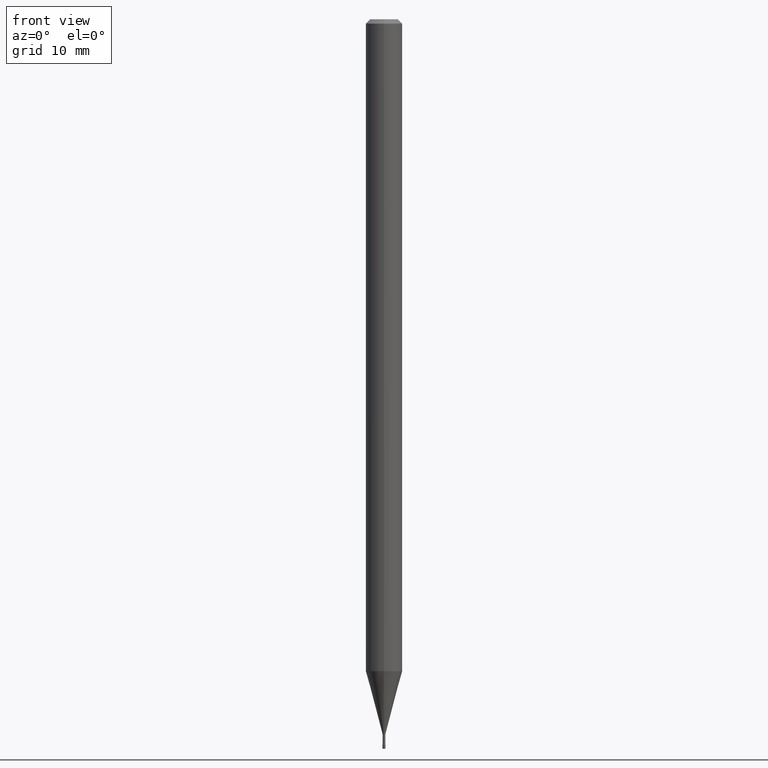
[diagram: clean part render]
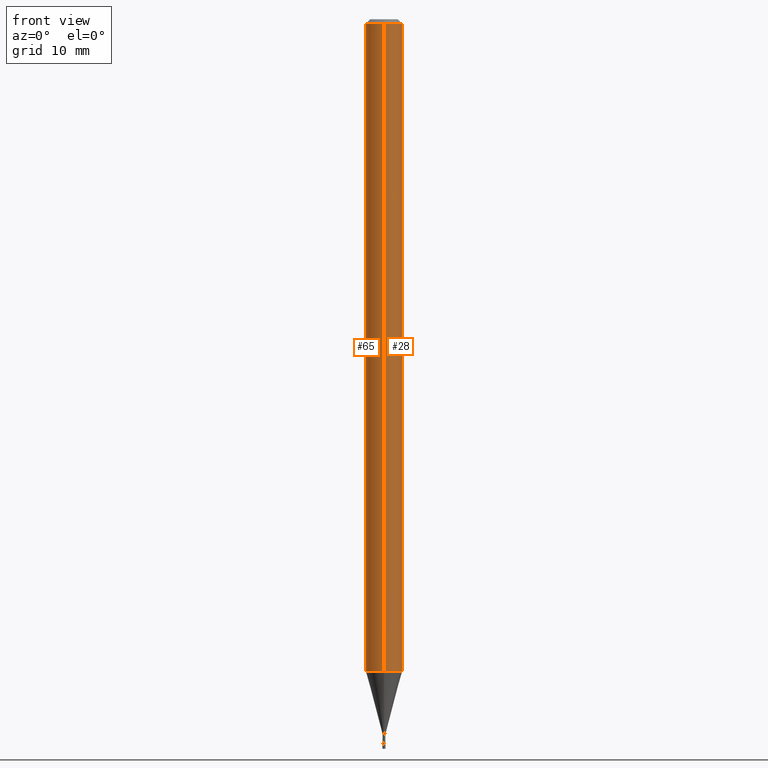
[diagram: same view with one multi-face feature highlighted, each face labeled with its STEP entity id]
A machine part, front view. The highlighted faces form ONE feature: a constant-radius fillet chain: 2 tangent blend faces with common blend radius 1.5875 mm. The faces share edges in the B-rep.
Their STEP definitions:
[1] entity #65 (Cylinder):
#6 = DIRECTION ( 'NONE',  ( -2.444331714462359119E-29, 3.493109718909404657E-15, 1.000000000000000000 ) ) ;
#23 = AXIS2_PLACEMENT_3D ( 'NONE', #408, #6, #172 ) ;
#25 = CARTESIAN_POINT ( 'NONE',  ( 4.440892098501175406E-16, 0.06249999999999995143, -0.01500000000000024751 ) ) ;
#41 = VERTEX_POINT ( 'NONE', #25 ) ;
#55 = AXIS2_PLACEMENT_3D ( 'NONE', #167, #325, #206 ) ;
#65 = ADVANCED_FACE ( 'NONE', ( #300 ), #333, .T. ) ;
#74 = EDGE_CURVE ( 'NONE', #297, #378, #403, .T. ) ;
#77 = VECTOR ( 'NONE', #518, 39.37007874015748143 ) ;
#82 = CARTESIAN_POINT ( 'NONE',  ( -4.364351673553916201E-16, -0.06250000000000000000, 2.183193574318377911E-16 ) ) ;
#96 = DIRECTION ( 'NONE',  ( -2.444331714462359119E-29, 3.493109718909404657E-15, 1.000000000000000000 ) ) ;
#107 = AXIS2_PLACEMENT_3D ( 'NONE', #444, #96, #249 ) ;
#110 = ORIENTED_EDGE ( 'NONE', *, *, #74, .T. ) ;
#135 = ORIENTED_EDGE ( 'NONE', *, *, #230, .T. ) ;
#149 = CARTESIAN_POINT ( 'NONE',  ( -4.364351673553370901E-16, -0.06250000000000781319, -2.234287463322519152 ) ) ;
#167 = CARTESIAN_POINT ( 'NONE',  ( 5.461339705824889483E-29, -7.804611252969332594E-15, -2.234287463322519596 ) ) ;
#172 = DIRECTION ( 'NONE',  ( -6.982962677686265922E-15, -1.000000000000000000, 3.483106191921935554E-15 ) ) ;
#174 = CARTESIAN_POINT ( 'NONE',  ( 4.440892098501170476E-16, 0.06249999999999218681, -2.234287463322519596 ) ) ;
#206 = DIRECTION ( 'NONE',  ( -6.982962677686265922E-15, -1.000000000000000000, 4.370956789862821150E-15 ) ) ;
#230 = EDGE_CURVE ( 'NONE', #431, #297, #440, .T. ) ;
#231 = ORIENTED_EDGE ( 'NONE', *, *, #262, .F. ) ;
#249 = DIRECTION ( 'NONE',  ( -6.982962677686265922E-15, -1.000000000000000000, 3.493109718909404657E-15 ) ) ;
#260 = DIRECTION ( 'NONE',  ( -2.444331714462359119E-29, 3.493109718909404263E-15, 1.000000000000000000 ) ) ;
#262 = EDGE_CURVE ( 'NONE', #41, #378, #514, .T. ) ;
#286 = EDGE_CURVE ( 'NONE', #431, #41, #511, .T. ) ;
#297 = VERTEX_POINT ( 'NONE', #149 ) ;
#300 = FACE_OUTER_BOUND ( 'NONE', #315, .T. ) ;
#312 = ORIENTED_EDGE ( 'NONE', *, *, #286, .F. ) ;
#315 = EDGE_LOOP ( 'NONE', ( #312, #135, #110, #231 ) ) ;
#325 = DIRECTION ( 'NONE',  ( -2.444331714462359119E-29, 3.493109718909404657E-15, 1.000000000000000000 ) ) ;
#333 = CYLINDRICAL_SURFACE ( 'NONE', #107, 0.06250000000000000000 ) ;
#359 = CARTESIAN_POINT ( 'NONE',  ( 4.440892098500625669E-16, 0.06250000000000000000, -2.183193574318377911E-16 ) ) ;
#378 = VERTEX_POINT ( 'NONE', #437 ) ;
#403 = LINE ( 'NONE', #82, #490 ) ;
#408 = CARTESIAN_POINT ( 'NONE',  ( 3.666497571693545913E-31, -5.239664578364117759E-17, -0.01500000000000003067 ) ) ;
#431 = VERTEX_POINT ( 'NONE', #174 ) ;
#437 = CARTESIAN_POINT ( 'NONE',  ( -4.364351673553912750E-16, -0.06250000000000005551, -0.01499999999999981209 ) ) ;
#440 = CIRCLE ( 'NONE', #55, 0.06250000000000000000 ) ;
#444 = CARTESIAN_POINT ( 'NONE',  ( 0.000000000000000000, 0.000000000000000000, 0.000000000000000000 ) ) ;
#490 = VECTOR ( 'NONE', #260, 39.37007874015748143 ) ;
#511 = LINE ( 'NONE', #359, #77 ) ;
#514 = CIRCLE ( 'NONE', #23, 0.06250000000000000000 ) ;
#518 = DIRECTION ( 'NONE',  ( -2.444331714462359119E-29, 3.493109718909404263E-15, 1.000000000000000000 ) ) ;
[2] entity #28 (Cylinder):
#9 = EDGE_CURVE ( 'NONE', #297, #431, #255, .T. ) ;
#21 = DIRECTION ( 'NONE',  ( -2.444331714462359119E-29, 3.493109718909404657E-15, 1.000000000000000000 ) ) ;
#25 = CARTESIAN_POINT ( 'NONE',  ( 4.440892098501175406E-16, 0.06249999999999995143, -0.01500000000000024751 ) ) ;
#28 = ADVANCED_FACE ( 'NONE', ( #310 ), #302, .T. ) ;
#41 = VERTEX_POINT ( 'NONE', #25 ) ;
#52 = DIRECTION ( 'NONE',  ( -2.444331714462359119E-29, 3.493109718909404657E-15, 1.000000000000000000 ) ) ;
#69 = EDGE_LOOP ( 'NONE', ( #468, #308, #363, #465 ) ) ;
#74 = EDGE_CURVE ( 'NONE', #297, #378, #403, .T. ) ;
#77 = VECTOR ( 'NONE', #518, 39.37007874015748143 ) ;
#82 = CARTESIAN_POINT ( 'NONE',  ( -4.364351673553916201E-16, -0.06250000000000000000, 2.183193574318377911E-16 ) ) ;
#105 = DIRECTION ( 'NONE',  ( -6.982962677686265922E-15, -1.000000000000000000, 4.370956789862821150E-15 ) ) ;
#149 = CARTESIAN_POINT ( 'NONE',  ( -4.364351673553370901E-16, -0.06250000000000781319, -2.234287463322519152 ) ) ;
#174 = CARTESIAN_POINT ( 'NONE',  ( 4.440892098501170476E-16, 0.06249999999999218681, -2.234287463322519596 ) ) ;
#181 = DIRECTION ( 'NONE',  ( -6.982962677686265922E-15, -1.000000000000000000, 3.483106191921935554E-15 ) ) ;
#187 = CARTESIAN_POINT ( 'NONE',  ( 5.461339705824889483E-29, -7.804611252969332594E-15, -2.234287463322519596 ) ) ;
#199 = AXIS2_PLACEMENT_3D ( 'NONE', #187, #21, #105 ) ;
#255 = CIRCLE ( 'NONE', #199, 0.06250000000000000000 ) ;
#260 = DIRECTION ( 'NONE',  ( -2.444331714462359119E-29, 3.493109718909404263E-15, 1.000000000000000000 ) ) ;
#286 = EDGE_CURVE ( 'NONE', #431, #41, #511, .T. ) ;
#287 = AXIS2_PLACEMENT_3D ( 'NONE', #414, #52, #181 ) ;
#297 = VERTEX_POINT ( 'NONE', #149 ) ;
#302 = CYLINDRICAL_SURFACE ( 'NONE', #335, 0.06250000000000000000 ) ;
#308 = ORIENTED_EDGE ( 'NONE', *, *, #286, .T. ) ;
#310 = FACE_OUTER_BOUND ( 'NONE', #69, .T. ) ;
#335 = AXIS2_PLACEMENT_3D ( 'NONE', #456, #385, #343 ) ;
#343 = DIRECTION ( 'NONE',  ( -6.982962677686265922E-15, -1.000000000000000000, 3.493109718909404657E-15 ) ) ;
#349 = CIRCLE ( 'NONE', #287, 0.06250000000000000000 ) ;
#359 = CARTESIAN_POINT ( 'NONE',  ( 4.440892098500625669E-16, 0.06250000000000000000, -2.183193574318377911E-16 ) ) ;
#363 = ORIENTED_EDGE ( 'NONE', *, *, #483, .F. ) ;
#378 = VERTEX_POINT ( 'NONE', #437 ) ;
#385 = DIRECTION ( 'NONE',  ( -2.444331714462359119E-29, 3.493109718909404657E-15, 1.000000000000000000 ) ) ;
#403 = LINE ( 'NONE', #82, #490 ) ;
#414 = CARTESIAN_POINT ( 'NONE',  ( 3.666497571693545913E-31, -5.239664578364117759E-17, -0.01500000000000003067 ) ) ;
#431 = VERTEX_POINT ( 'NONE', #174 ) ;
#437 = CARTESIAN_POINT ( 'NONE',  ( -4.364351673553912750E-16, -0.06250000000000005551, -0.01499999999999981209 ) ) ;
#456 = CARTESIAN_POINT ( 'NONE',  ( 0.000000000000000000, 0.000000000000000000, 0.000000000000000000 ) ) ;
#465 = ORIENTED_EDGE ( 'NONE', *, *, #74, .F. ) ;
#468 = ORIENTED_EDGE ( 'NONE', *, *, #9, .T. ) ;
#483 = EDGE_CURVE ( 'NONE', #378, #41, #349, .T. ) ;
#490 = VECTOR ( 'NONE', #260, 39.37007874015748143 ) ;
#511 = LINE ( 'NONE', #359, #77 ) ;
#518 = DIRECTION ( 'NONE',  ( -2.444331714462359119E-29, 3.493109718909404263E-15, 1.000000000000000000 ) ) ;